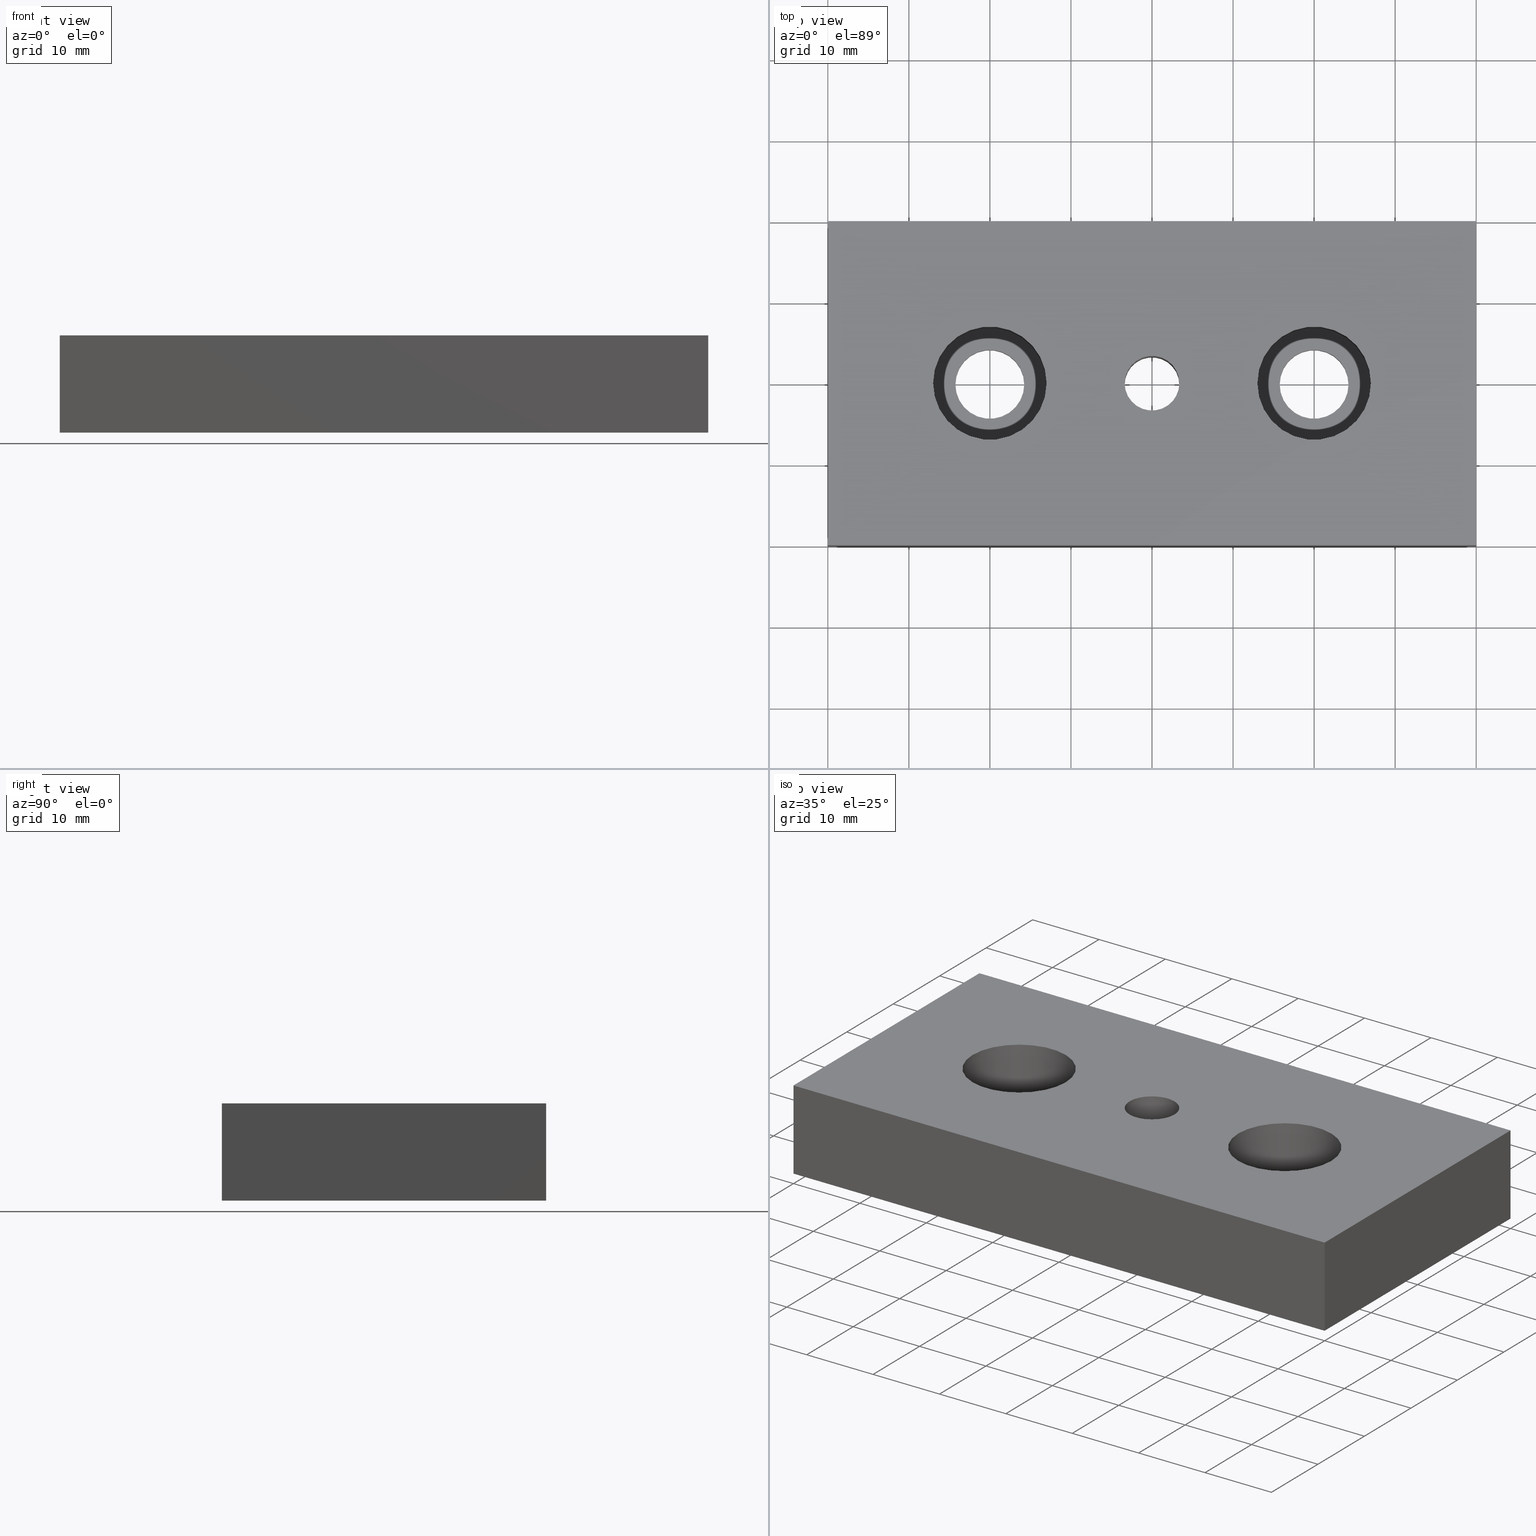
[diagram: canonical four-view strip — front | top / right | iso, engineering-drawing reading convention]
A machine part, canonical four-view strip (front | top / right | iso — engineering-drawing reading convention). The complete STEP part file that produces these views, byte-faithful:
ISO-10303-21;
HEADER;
/****************************************************************
 * Generated by software with PDE/Lib inside                    *
 * PDElib Version v4.4, created Mon 02/23/2004                  *
 * International Technegroup Inc. (www.iti-oh.com)              *
 ****************************************************************/
FILE_DESCRIPTION(('STEP AP203'),'2;1');
FILE_NAME('31.001.00.stp','2011-03-21T16:24:08',(''),(''),'2009.3.110','THINKDESIGN','');
FILE_SCHEMA(('CONFIG_CONTROL_DESIGN'));
ENDSEC;
DATA;
#2=CARTESIAN_POINT('',(39.999991119999947,20.000000000000114,12.0));
#3=DIRECTION('',(0.0,-1.0,0.0));
#4=DIRECTION('',(-1.0,0.0,0.0));
#5=AXIS2_PLACEMENT_3D('',#2,#3,#4);
#6=PLANE('',#5);
#7=CARTESIAN_POINT('',(39.999991119999947,20.000000000000114,12.0));
#8=VERTEX_POINT('',#7);
#9=CARTESIAN_POINT('',(39.999991119999947,20.000000000000114,0.0));
#10=VERTEX_POINT('',#9);
#11=CARTESIAN_POINT('',(39.999991119999947,20.000000000000114,12.0));
#12=DIRECTION('',(0.0,0.0,-1.0));
#13=VECTOR('',#12,12.0);
#14=LINE('',#11,#13);
#15=EDGE_CURVE('',#8,#10,#14,.T.);
#16=ORIENTED_EDGE('',*,*,#15,.T.);
#17=CARTESIAN_POINT('',(-39.999991120000061,20.000000000000114,0.0));
#18=VERTEX_POINT('',#17);
#19=CARTESIAN_POINT('',(39.999991119999947,20.000000000000114,0.0));
#20=DIRECTION('',(-1.0,0.0,0.0));
#21=VECTOR('',#20,79.999982240000008);
#22=LINE('',#19,#21);
#23=EDGE_CURVE('',#10,#18,#22,.T.);
#24=ORIENTED_EDGE('',*,*,#23,.T.);
#25=CARTESIAN_POINT('',(-39.999991120000061,20.000000000000114,12.0));
#26=VERTEX_POINT('',#25);
#27=CARTESIAN_POINT('',(-39.999991120000061,20.000000000000114,12.0));
#28=DIRECTION('',(0.0,0.0,-1.0));
#29=VECTOR('',#28,12.0);
#30=LINE('',#27,#29);
#31=EDGE_CURVE('',#26,#18,#30,.T.);
#32=ORIENTED_EDGE('',*,*,#31,.F.);
#33=CARTESIAN_POINT('',(39.999991119999947,20.000000000000114,12.0));
#34=DIRECTION('',(-1.0,0.0,0.0));
#35=VECTOR('',#34,79.999982240000008);
#36=LINE('',#33,#35);
#37=EDGE_CURVE('',#8,#26,#36,.T.);
#38=ORIENTED_EDGE('',*,*,#37,.F.);
#39=EDGE_LOOP('',(#16,#24,#32,#38));
#40=FACE_OUTER_BOUND('',#39,.T.);
#41=ADVANCED_FACE('',(#40),#6,.F.);
#42=CARTESIAN_POINT('',(-39.999991120000061,20.000000000000114,12.0));
#43=DIRECTION('',(1.0,0.0,0.0));
#44=DIRECTION('',(0.0,-1.0,0.0));
#45=AXIS2_PLACEMENT_3D('',#42,#43,#44);
#46=PLANE('',#45);
#47=ORIENTED_EDGE('',*,*,#31,.T.);
#48=CARTESIAN_POINT('',(-39.999991120000061,-19.999991120000004,0.0));
#49=VERTEX_POINT('',#48);
#50=CARTESIAN_POINT('',(-39.999991120000061,20.000000000000114,0.0));
#51=DIRECTION('',(0.0,-1.0,0.0));
#52=VECTOR('',#51,39.999991120000118);
#53=LINE('',#50,#52);
#54=EDGE_CURVE('',#18,#49,#53,.T.);
#55=ORIENTED_EDGE('',*,*,#54,.T.);
#56=CARTESIAN_POINT('',(-39.999991120000061,-19.999991120000004,12.0));
#57=VERTEX_POINT('',#56);
#58=CARTESIAN_POINT('',(-39.999991120000061,-19.999991120000004,12.0));
#59=DIRECTION('',(0.0,0.0,-1.0));
#60=VECTOR('',#59,12.0);
#61=LINE('',#58,#60);
#62=EDGE_CURVE('',#57,#49,#61,.T.);
#63=ORIENTED_EDGE('',*,*,#62,.F.);
#64=CARTESIAN_POINT('',(-39.999991120000061,20.000000000000114,12.0));
#65=DIRECTION('',(0.0,-1.0,0.0));
#66=VECTOR('',#65,39.999991120000118);
#67=LINE('',#64,#66);
#68=EDGE_CURVE('',#26,#57,#67,.T.);
#69=ORIENTED_EDGE('',*,*,#68,.F.);
#70=EDGE_LOOP('',(#47,#55,#63,#69));
#71=FACE_OUTER_BOUND('',#70,.T.);
#72=ADVANCED_FACE('',(#71),#46,.F.);
#73=CARTESIAN_POINT('',(-39.999991120000061,-19.999991120000004,12.0));
#74=DIRECTION('',(0.0,1.0,0.0));
#75=DIRECTION('',(1.0,0.0,0.0));
#76=AXIS2_PLACEMENT_3D('',#73,#74,#75);
#77=PLANE('',#76);
#78=ORIENTED_EDGE('',*,*,#62,.T.);
#79=CARTESIAN_POINT('',(39.999991119999947,-19.999991120000004,0.0));
#80=VERTEX_POINT('',#79);
#81=CARTESIAN_POINT('',(-39.999991120000061,-19.999991120000004,0.0));
#82=DIRECTION('',(1.0,0.0,0.0));
#83=VECTOR('',#82,79.999982240000008);
#84=LINE('',#81,#83);
#85=EDGE_CURVE('',#49,#80,#84,.T.);
#86=ORIENTED_EDGE('',*,*,#85,.T.);
#87=CARTESIAN_POINT('',(39.999991119999947,-19.999991120000004,12.0));
#88=VERTEX_POINT('',#87);
#89=CARTESIAN_POINT('',(39.999991119999947,-19.999991120000004,12.0));
#90=DIRECTION('',(0.0,0.0,-1.0));
#91=VECTOR('',#90,12.0);
#92=LINE('',#89,#91);
#93=EDGE_CURVE('',#88,#80,#92,.T.);
#94=ORIENTED_EDGE('',*,*,#93,.F.);
#95=CARTESIAN_POINT('',(-39.999991120000061,-19.999991120000004,12.0));
#96=DIRECTION('',(1.0,0.0,0.0));
#97=VECTOR('',#96,79.999982240000008);
#98=LINE('',#95,#97);
#99=EDGE_CURVE('',#57,#88,#98,.T.);
#100=ORIENTED_EDGE('',*,*,#99,.F.);
#101=EDGE_LOOP('',(#78,#86,#94,#100));
#102=FACE_OUTER_BOUND('',#101,.T.);
#103=ADVANCED_FACE('',(#102),#77,.F.);
#104=CARTESIAN_POINT('',(39.999991119999947,-19.999991120000004,12.0));
#105=DIRECTION('',(-1.0,0.0,0.0));
#106=DIRECTION('',(0.0,1.0,0.0));
#107=AXIS2_PLACEMENT_3D('',#104,#105,#106);
#108=PLANE('',#107);
#109=ORIENTED_EDGE('',*,*,#93,.T.);
#110=CARTESIAN_POINT('',(39.999991119999947,-19.999991120000004,0.0));
#111=DIRECTION('',(0.0,1.0,0.0));
#112=VECTOR('',#111,39.999991120000118);
#113=LINE('',#110,#112);
#114=EDGE_CURVE('',#80,#10,#113,.T.);
#115=ORIENTED_EDGE('',*,*,#114,.T.);
#116=ORIENTED_EDGE('',*,*,#15,.F.);
#117=CARTESIAN_POINT('',(39.999991119999947,-19.999991120000004,12.0));
#118=DIRECTION('',(0.0,1.0,0.0));
#119=VECTOR('',#118,39.999991120000118);
#120=LINE('',#117,#119);
#121=EDGE_CURVE('',#88,#8,#120,.T.);
#122=ORIENTED_EDGE('',*,*,#121,.F.);
#123=EDGE_LOOP('',(#109,#115,#116,#122));
#124=FACE_OUTER_BOUND('',#123,.T.);
#125=ADVANCED_FACE('',(#124),#108,.F.);
#126=CARTESIAN_POINT('',(-48.000109346378082,-24.000110234280328,12.0));
#127=DIRECTION('',(0.0,0.0,1.0));
#128=DIRECTION('',(1.0,0.0,0.0));
#129=AXIS2_PLACEMENT_3D('',#126,#127,#128);
#130=PLANE('',#129);
#131=ORIENTED_EDGE('',*,*,#37,.T.);
#132=ORIENTED_EDGE('',*,*,#68,.T.);
#133=ORIENTED_EDGE('',*,*,#99,.T.);
#134=ORIENTED_EDGE('',*,*,#121,.T.);
#135=EDGE_LOOP('',(#131,#132,#133,#134));
#136=FACE_OUTER_BOUND('',#135,.T.);
#137=CARTESIAN_POINT('',(-27.009994006000085,0.000004439999998,12.0));
#138=VERTEX_POINT('',#137);
#139=CARTESIAN_POINT('',(-13.009997114000072,0.000004439999998,11.999999999999998));
#140=VERTEX_POINT('',#139);
#141=CARTESIAN_POINT('',(-20.009995560000078,0.000004439999998,12.0));
#142=DIRECTION('',(0.0,6.123234E-017,1.0));
#143=DIRECTION('',(1.0,0.0,0.0));
#144=AXIS2_PLACEMENT_3D('',#141,#142,#143);
#145=CIRCLE('',#144,6.999998446000006);
#146=EDGE_CURVE('',#138,#140,#145,.T.);
#147=ORIENTED_EDGE('',*,*,#146,.F.);
#148=CARTESIAN_POINT('',(-20.009995560000078,0.000004439999998,12.0));
#149=DIRECTION('',(0.0,6.123234E-017,1.0));
#150=DIRECTION('',(1.0,0.0,0.0));
#151=AXIS2_PLACEMENT_3D('',#148,#149,#150);
#152=CIRCLE('',#151,6.999998446000006);
#153=EDGE_CURVE('',#140,#138,#152,.T.);
#154=ORIENTED_EDGE('',*,*,#153,.F.);
#155=EDGE_LOOP('',(#147,#154));
#156=FACE_BOUND('',#155,.T.);
#157=CARTESIAN_POINT('',(12.999997113999939,0.000004439999998,12.0));
#158=VERTEX_POINT('',#157);
#159=CARTESIAN_POINT('',(26.999994005999952,0.000004439999998,11.999999999999998));
#160=VERTEX_POINT('',#159);
#161=CARTESIAN_POINT('',(19.999995559999945,0.000004439999998,12.0));
#162=DIRECTION('',(0.0,6.123234E-017,1.0));
#163=DIRECTION('',(1.0,0.0,0.0));
#164=AXIS2_PLACEMENT_3D('',#161,#162,#163);
#165=CIRCLE('',#164,6.999998446000006);
#166=EDGE_CURVE('',#158,#160,#165,.T.);
#167=ORIENTED_EDGE('',*,*,#166,.F.);
#168=CARTESIAN_POINT('',(19.999995559999945,0.000004439999998,12.0));
#169=DIRECTION('',(0.0,6.123234E-017,1.0));
#170=DIRECTION('',(1.0,0.0,0.0));
#171=AXIS2_PLACEMENT_3D('',#168,#169,#170);
#172=CIRCLE('',#171,6.999998446000006);
#173=EDGE_CURVE('',#160,#158,#172,.T.);
#174=ORIENTED_EDGE('',*,*,#173,.F.);
#175=EDGE_LOOP('',(#167,#174));
#176=FACE_BOUND('',#175,.T.);
#177=CARTESIAN_POINT('',(-3.375000000000000,0.0,12.0));
#178=VERTEX_POINT('',#177);
#179=CARTESIAN_POINT('',(3.375000000000000,0.0,12.0));
#180=VERTEX_POINT('',#179);
#181=CARTESIAN_POINT('',(0.0,0.0,12.0));
#182=DIRECTION('',(0.0,0.0,1.0));
#183=DIRECTION('',(1.0,0.0,0.0));
#184=AXIS2_PLACEMENT_3D('',#181,#182,#183);
#185=CIRCLE('',#184,3.375000000000000);
#186=EDGE_CURVE('',#178,#180,#185,.T.);
#187=ORIENTED_EDGE('',*,*,#186,.F.);
#188=CARTESIAN_POINT('',(0.0,0.0,12.0));
#189=DIRECTION('',(0.0,0.0,1.0));
#190=DIRECTION('',(1.0,0.0,0.0));
#191=AXIS2_PLACEMENT_3D('',#188,#189,#190);
#192=CIRCLE('',#191,3.375000000000000);
#193=EDGE_CURVE('',#180,#178,#192,.T.);
#194=ORIENTED_EDGE('',*,*,#193,.F.);
#195=EDGE_LOOP('',(#187,#194));
#196=FACE_BOUND('',#195,.T.);
#197=ADVANCED_FACE('',(#136,#156,#176,#196),#130,.T.);
#198=CARTESIAN_POINT('',(-48.000109346378082,-24.000110234280328,0.0));
#199=DIRECTION('',(0.0,0.0,1.0));
#200=DIRECTION('',(1.0,0.0,0.0));
#201=AXIS2_PLACEMENT_3D('',#198,#199,#200);
#202=PLANE('',#201);
#203=ORIENTED_EDGE('',*,*,#114,.F.);
#204=ORIENTED_EDGE('',*,*,#85,.F.);
#205=ORIENTED_EDGE('',*,*,#54,.F.);
#206=ORIENTED_EDGE('',*,*,#23,.F.);
#207=EDGE_LOOP('',(#203,#204,#205,#206));
#208=FACE_OUTER_BOUND('',#207,.T.);
#209=CARTESIAN_POINT('',(-15.759995560000078,0.000004439999998,0.0));
#210=VERTEX_POINT('',#209);
#211=CARTESIAN_POINT('',(-24.259995560000078,0.000004439999998,0.0));
#212=VERTEX_POINT('',#211);
#213=CARTESIAN_POINT('',(-20.009995560000078,0.000004439999998,0.0));
#214=DIRECTION('',(0.0,6.123234E-017,1.0));
#215=DIRECTION('',(1.0,0.0,0.0));
#216=AXIS2_PLACEMENT_3D('',#213,#214,#215);
#217=CIRCLE('',#216,4.250000000000000);
#218=EDGE_CURVE('',#210,#212,#217,.T.);
#219=ORIENTED_EDGE('',*,*,#218,.T.);
#220=CARTESIAN_POINT('',(-20.009995560000078,0.000004439999998,0.0));
#221=DIRECTION('',(0.0,6.123234E-017,1.0));
#222=DIRECTION('',(1.0,0.0,0.0));
#223=AXIS2_PLACEMENT_3D('',#220,#221,#222);
#224=CIRCLE('',#223,4.250000000000000);
#225=EDGE_CURVE('',#212,#210,#224,.T.);
#226=ORIENTED_EDGE('',*,*,#225,.T.);
#227=EDGE_LOOP('',(#219,#226));
#228=FACE_BOUND('',#227,.T.);
#229=CARTESIAN_POINT('',(24.249995559999945,0.000004439999998,0.0));
#230=VERTEX_POINT('',#229);
#231=CARTESIAN_POINT('',(15.749995559999945,0.000004439999998,0.0));
#232=VERTEX_POINT('',#231);
#233=CARTESIAN_POINT('',(19.999995559999945,0.000004439999998,0.0));
#234=DIRECTION('',(0.0,6.123234E-017,1.0));
#235=DIRECTION('',(1.0,0.0,0.0));
#236=AXIS2_PLACEMENT_3D('',#233,#234,#235);
#237=CIRCLE('',#236,4.250000000000000);
#238=EDGE_CURVE('',#230,#232,#237,.T.);
#239=ORIENTED_EDGE('',*,*,#238,.T.);
#240=CARTESIAN_POINT('',(19.999995559999945,0.000004439999998,0.0));
#241=DIRECTION('',(0.0,6.123234E-017,1.0));
#242=DIRECTION('',(1.0,0.0,0.0));
#243=AXIS2_PLACEMENT_3D('',#240,#241,#242);
#244=CIRCLE('',#243,4.250000000000000);
#245=EDGE_CURVE('',#232,#230,#244,.T.);
#246=ORIENTED_EDGE('',*,*,#245,.T.);
#247=EDGE_LOOP('',(#239,#246));
#248=FACE_BOUND('',#247,.T.);
#249=CARTESIAN_POINT('',(-3.375000000000000,0.0,0.0));
#250=VERTEX_POINT('',#249);
#251=CARTESIAN_POINT('',(3.375000000000000,0.0,0.0));
#252=VERTEX_POINT('',#251);
#253=CARTESIAN_POINT('',(0.0,0.0,0.0));
#254=DIRECTION('',(0.0,0.0,-1.0));
#255=DIRECTION('',(1.0,0.0,0.0));
#256=AXIS2_PLACEMENT_3D('',#253,#254,#255);
#257=CIRCLE('',#256,3.375000000000000);
#258=EDGE_CURVE('',#250,#252,#257,.T.);
#259=ORIENTED_EDGE('',*,*,#258,.F.);
#260=CARTESIAN_POINT('',(0.0,0.0,0.0));
#261=DIRECTION('',(0.0,0.0,-1.0));
#262=DIRECTION('',(1.0,0.0,0.0));
#263=AXIS2_PLACEMENT_3D('',#260,#261,#262);
#264=CIRCLE('',#263,3.375000000000000);
#265=EDGE_CURVE('',#252,#250,#264,.T.);
#266=ORIENTED_EDGE('',*,*,#265,.F.);
#267=EDGE_LOOP('',(#259,#266));
#268=FACE_BOUND('',#267,.T.);
#269=ADVANCED_FACE('',(#208,#228,#248,#268),#202,.F.);
#270=CARTESIAN_POINT('',(-20.009995560000078,0.000004439999998,-1.200440597534186));
#271=DIRECTION('',(0.0,6.123234E-017,1.0));
#272=DIRECTION('',(1.0,0.0,0.0));
#273=AXIS2_PLACEMENT_3D('',#270,#271,#272);
#274=CYLINDRICAL_SURFACE('',#273,4.250000000000000);
#275=CARTESIAN_POINT('',(-15.759995560000078,0.000004439999998,3.999999999999998));
#276=VERTEX_POINT('',#275);
#277=CARTESIAN_POINT('',(-15.759995560000078,0.000004439999998,0.0));
#278=DIRECTION('',(0.0,0.0,1.0));
#279=VECTOR('',#278,3.999999999999998);
#280=LINE('',#277,#279);
#281=EDGE_CURVE('',#210,#276,#280,.T.);
#282=ORIENTED_EDGE('',*,*,#281,.F.);
#283=ORIENTED_EDGE('',*,*,#225,.F.);
#284=ORIENTED_EDGE('',*,*,#218,.F.);
#285=ORIENTED_EDGE('',*,*,#281,.T.);
#286=CARTESIAN_POINT('',(-24.259995560000078,0.000004439999998,4.0));
#287=VERTEX_POINT('',#286);
#288=CARTESIAN_POINT('',(-20.009995560000078,0.000004439999998,4.0));
#289=DIRECTION('',(0.0,6.123234E-017,1.0));
#290=DIRECTION('',(1.0,0.0,0.0));
#291=AXIS2_PLACEMENT_3D('',#288,#289,#290);
#292=CIRCLE('',#291,4.250000000000000);
#293=EDGE_CURVE('',#276,#287,#292,.T.);
#294=ORIENTED_EDGE('',*,*,#293,.T.);
#295=CARTESIAN_POINT('',(-20.009995560000078,0.000004439999998,4.0));
#296=DIRECTION('',(0.0,6.123234E-017,1.0));
#297=DIRECTION('',(1.0,0.0,0.0));
#298=AXIS2_PLACEMENT_3D('',#295,#296,#297);
#299=CIRCLE('',#298,4.250000000000000);
#300=EDGE_CURVE('',#287,#276,#299,.T.);
#301=ORIENTED_EDGE('',*,*,#300,.T.);
#302=EDGE_LOOP('',(#282,#283,#284,#285,#294,#301));
#303=FACE_OUTER_BOUND('',#302,.T.);
#304=ADVANCED_FACE('',(#303),#274,.F.);
#305=CARTESIAN_POINT('',(-34.009992452000091,-13.999992452000015,4.000000000000001));
#306=DIRECTION('',(0.0,0.0,-1.0));
#307=DIRECTION('',(0.0,1.0,0.0));
#308=AXIS2_PLACEMENT_3D('',#305,#306,#307);
#309=PLANE('',#308);
#310=CARTESIAN_POINT('',(-13.009997114000072,0.000004439999998,4.0));
#311=VERTEX_POINT('',#310);
#312=CARTESIAN_POINT('',(-27.009994006000085,0.000004439999998,4.0));
#313=VERTEX_POINT('',#312);
#314=CARTESIAN_POINT('',(-20.009995560000078,0.000004439999998,4.0));
#315=DIRECTION('',(0.0,6.123234E-017,1.0));
#316=DIRECTION('',(1.0,0.0,0.0));
#317=AXIS2_PLACEMENT_3D('',#314,#315,#316);
#318=CIRCLE('',#317,6.999998446000006);
#319=EDGE_CURVE('',#311,#313,#318,.T.);
#320=ORIENTED_EDGE('',*,*,#319,.T.);
#321=CARTESIAN_POINT('',(-20.009995560000078,0.000004439999998,4.0));
#322=DIRECTION('',(0.0,6.123234E-017,1.0));
#323=DIRECTION('',(1.0,0.0,0.0));
#324=AXIS2_PLACEMENT_3D('',#321,#322,#323);
#325=CIRCLE('',#324,6.999998446000006);
#326=EDGE_CURVE('',#313,#311,#325,.T.);
#327=ORIENTED_EDGE('',*,*,#326,.T.);
#328=EDGE_LOOP('',(#320,#327));
#329=FACE_OUTER_BOUND('',#328,.T.);
#330=ORIENTED_EDGE('',*,*,#300,.F.);
#331=ORIENTED_EDGE('',*,*,#293,.F.);
#332=EDGE_LOOP('',(#330,#331));
#333=FACE_BOUND('',#332,.T.);
#334=ADVANCED_FACE('',(#329,#333),#309,.F.);
#335=CARTESIAN_POINT('',(-20.009995560000078,0.000004439999998,4.0));
#336=DIRECTION('',(0.0,6.123234E-017,1.0));
#337=DIRECTION('',(1.0,0.0,0.0));
#338=AXIS2_PLACEMENT_3D('',#335,#336,#337);
#339=CYLINDRICAL_SURFACE('',#338,6.999998446000006);
#340=CARTESIAN_POINT('',(-13.009997114000072,0.000004439999998,4.0));
#341=DIRECTION('',(0.0,0.0,1.0));
#342=VECTOR('',#341,7.999999999999998);
#343=LINE('',#340,#342);
#344=EDGE_CURVE('',#311,#140,#343,.T.);
#345=ORIENTED_EDGE('',*,*,#344,.T.);
#346=ORIENTED_EDGE('',*,*,#153,.T.);
#347=ORIENTED_EDGE('',*,*,#146,.T.);
#348=ORIENTED_EDGE('',*,*,#344,.F.);
#349=ORIENTED_EDGE('',*,*,#326,.F.);
#350=ORIENTED_EDGE('',*,*,#319,.F.);
#351=EDGE_LOOP('',(#345,#346,#347,#348,#349,#350));
#352=FACE_OUTER_BOUND('',#351,.T.);
#353=ADVANCED_FACE('',(#352),#339,.F.);
#354=CARTESIAN_POINT('',(19.999995559999945,0.000004439999998,-1.200440597534186));
#355=DIRECTION('',(0.0,6.123234E-017,1.0));
#356=DIRECTION('',(1.0,0.0,0.0));
#357=AXIS2_PLACEMENT_3D('',#354,#355,#356);
#358=CYLINDRICAL_SURFACE('',#357,4.250000000000000);
#359=CARTESIAN_POINT('',(24.249995559999945,0.000004439999998,3.999999999999998));
#360=VERTEX_POINT('',#359);
#361=CARTESIAN_POINT('',(24.249995559999945,0.000004439999998,0.0));
#362=DIRECTION('',(0.0,0.0,1.0));
#363=VECTOR('',#362,3.999999999999998);
#364=LINE('',#361,#363);
#365=EDGE_CURVE('',#230,#360,#364,.T.);
#366=ORIENTED_EDGE('',*,*,#365,.F.);
#367=ORIENTED_EDGE('',*,*,#245,.F.);
#368=ORIENTED_EDGE('',*,*,#238,.F.);
#369=ORIENTED_EDGE('',*,*,#365,.T.);
#370=CARTESIAN_POINT('',(15.749995559999945,0.000004439999998,4.0));
#371=VERTEX_POINT('',#370);
#372=CARTESIAN_POINT('',(19.999995559999945,0.000004439999998,4.0));
#373=DIRECTION('',(0.0,6.123234E-017,1.0));
#374=DIRECTION('',(1.0,0.0,0.0));
#375=AXIS2_PLACEMENT_3D('',#372,#373,#374);
#376=CIRCLE('',#375,4.250000000000000);
#377=EDGE_CURVE('',#360,#371,#376,.T.);
#378=ORIENTED_EDGE('',*,*,#377,.T.);
#379=CARTESIAN_POINT('',(19.999995559999945,0.000004439999998,4.0));
#380=DIRECTION('',(0.0,6.123234E-017,1.0));
#381=DIRECTION('',(1.0,0.0,0.0));
#382=AXIS2_PLACEMENT_3D('',#379,#380,#381);
#383=CIRCLE('',#382,4.250000000000000);
#384=EDGE_CURVE('',#371,#360,#383,.T.);
#385=ORIENTED_EDGE('',*,*,#384,.T.);
#386=EDGE_LOOP('',(#366,#367,#368,#369,#378,#385));
#387=FACE_OUTER_BOUND('',#386,.T.);
#388=ADVANCED_FACE('',(#387),#358,.F.);
#389=CARTESIAN_POINT('',(5.999998667999932,-13.999992452000015,4.000000000000001));
#390=DIRECTION('',(0.0,0.0,-1.0));
#391=DIRECTION('',(0.0,1.0,0.0));
#392=AXIS2_PLACEMENT_3D('',#389,#390,#391);
#393=PLANE('',#392);
#394=CARTESIAN_POINT('',(26.999994005999952,0.000004439999998,4.0));
#395=VERTEX_POINT('',#394);
#396=CARTESIAN_POINT('',(12.999997113999939,0.000004439999998,4.0));
#397=VERTEX_POINT('',#396);
#398=CARTESIAN_POINT('',(19.999995559999945,0.000004439999998,4.0));
#399=DIRECTION('',(0.0,6.123234E-017,1.0));
#400=DIRECTION('',(1.0,0.0,0.0));
#401=AXIS2_PLACEMENT_3D('',#398,#399,#400);
#402=CIRCLE('',#401,6.999998446000006);
#403=EDGE_CURVE('',#395,#397,#402,.T.);
#404=ORIENTED_EDGE('',*,*,#403,.T.);
#405=CARTESIAN_POINT('',(19.999995559999945,0.000004439999998,4.0));
#406=DIRECTION('',(0.0,6.123234E-017,1.0));
#407=DIRECTION('',(1.0,0.0,0.0));
#408=AXIS2_PLACEMENT_3D('',#405,#406,#407);
#409=CIRCLE('',#408,6.999998446000006);
#410=EDGE_CURVE('',#397,#395,#409,.T.);
#411=ORIENTED_EDGE('',*,*,#410,.T.);
#412=EDGE_LOOP('',(#404,#411));
#413=FACE_OUTER_BOUND('',#412,.T.);
#414=ORIENTED_EDGE('',*,*,#384,.F.);
#415=ORIENTED_EDGE('',*,*,#377,.F.);
#416=EDGE_LOOP('',(#414,#415));
#417=FACE_BOUND('',#416,.T.);
#418=ADVANCED_FACE('',(#413,#417),#393,.F.);
#419=CARTESIAN_POINT('',(19.999995559999945,0.000004439999998,4.0));
#420=DIRECTION('',(0.0,6.123234E-017,1.0));
#421=DIRECTION('',(1.0,0.0,0.0));
#422=AXIS2_PLACEMENT_3D('',#419,#420,#421);
#423=CYLINDRICAL_SURFACE('',#422,6.999998446000006);
#424=CARTESIAN_POINT('',(26.999994005999952,0.000004439999998,4.0));
#425=DIRECTION('',(0.0,0.0,1.0));
#426=VECTOR('',#425,7.999999999999998);
#427=LINE('',#424,#426);
#428=EDGE_CURVE('',#395,#160,#427,.T.);
#429=ORIENTED_EDGE('',*,*,#428,.T.);
#430=ORIENTED_EDGE('',*,*,#173,.T.);
#431=ORIENTED_EDGE('',*,*,#166,.T.);
#432=ORIENTED_EDGE('',*,*,#428,.F.);
#433=ORIENTED_EDGE('',*,*,#410,.F.);
#434=ORIENTED_EDGE('',*,*,#403,.F.);
#435=EDGE_LOOP('',(#429,#430,#431,#432,#433,#434));
#436=FACE_OUTER_BOUND('',#435,.T.);
#437=ADVANCED_FACE('',(#436),#423,.F.);
#438=CARTESIAN_POINT('',(0.0,0.0,12.0));
#439=DIRECTION('',(0.0,0.0,1.0));
#440=DIRECTION('',(1.0,0.0,0.0));
#441=AXIS2_PLACEMENT_3D('',#438,#439,#440);
#442=CYLINDRICAL_SURFACE('',#441,3.375000000000000);
#443=CARTESIAN_POINT('',(3.375000000000000,0.0,12.0));
#444=DIRECTION('',(0.0,0.0,-1.0));
#445=VECTOR('',#444,12.0);
#446=LINE('',#443,#445);
#447=EDGE_CURVE('',#180,#252,#446,.T.);
#448=ORIENTED_EDGE('',*,*,#447,.T.);
#449=ORIENTED_EDGE('',*,*,#265,.T.);
#450=ORIENTED_EDGE('',*,*,#258,.T.);
#451=ORIENTED_EDGE('',*,*,#447,.F.);
#452=ORIENTED_EDGE('',*,*,#193,.T.);
#453=ORIENTED_EDGE('',*,*,#186,.T.);
#454=EDGE_LOOP('',(#448,#449,#450,#451,#452,#453));
#455=FACE_OUTER_BOUND('',#454,.T.);
#456=ADVANCED_FACE('',(#455),#442,.F.);
#457=CLOSED_SHELL('',(#41,#72,#103,#125,#197,#269,#304,#334,#353,#388,#418,#437,#456));
#458=MANIFOLD_SOLID_BREP('',#457);
#464=(NAMED_UNIT(*)PLANE_ANGLE_UNIT()SI_UNIT($,.RADIAN.));
#465=DIMENSIONAL_EXPONENTS(0.0,0.0,0.0,0.0,0.0,0.0,0.0);
#466=PLANE_ANGLE_MEASURE_WITH_UNIT(PLANE_ANGLE_MEASURE(0.017453292500000),#464);
#470=(CONVERSION_BASED_UNIT('DEGREE',#466)NAMED_UNIT(#465)PLANE_ANGLE_UNIT());
#474=(NAMED_UNIT(*)SI_UNIT($,.STERADIAN.)SOLID_ANGLE_UNIT());
#478=(LENGTH_UNIT()NAMED_UNIT(*)SI_UNIT(.MILLI.,.METRE.));
#480=UNCERTAINTY_MEASURE_WITH_UNIT(LENGTH_MEASURE(0.001000000000000),#478,'DISTANCE_ACCURACY_VALUE','');
#482=(GEOMETRIC_REPRESENTATION_CONTEXT(3)GLOBAL_UNCERTAINTY_ASSIGNED_CONTEXT((#480))GLOBAL_UNIT_ASSIGNED_CONTEXT((#470,#474,#478))REPRESENTATION_CONTEXT('thinkdesign','2009.3.110'));
#483=ADVANCED_BREP_SHAPE_REPRESENTATION('',(#458),#482);
#484=APPLICATION_CONTEXT('configuration controlled 3D designs of mechanical parts and assemblies');
#485=APPLICATION_PROTOCOL_DEFINITION('International Standard','config_control_design',1995,#484);
#486=MECHANICAL_CONTEXT('None',#484,'mechanical');
#487=PRODUCT('None','None','None',(#486));
#488=PRODUCT_RELATED_PRODUCT_CATEGORY('detail',$,(#487));
#489=PRODUCT_CATEGORY('part',$);
#490=PRODUCT_CATEGORY_RELATIONSHIP('None','None',#489,#488);
#491=PERSON('PERSON1','None','None',$,$,$);
#492=ORGANIZATION('','None','None');
#493=PERSON_AND_ORGANIZATION(#491,#492);
#494=PERSON_AND_ORGANIZATION_ROLE('design_owner');
#495=CC_DESIGN_PERSON_AND_ORGANIZATION_ASSIGNMENT(#493,#494,(#487));
#496=PRODUCT_DEFINITION_FORMATION_WITH_SPECIFIED_SOURCE('None','None',#487,.NOT_KNOWN.);
#497=PERSON('PERSON2','None','None',$,$,$);
#498=ORGANIZATION('','None','None');
#499=PERSON_AND_ORGANIZATION(#497,#498);
#500=PERSON_AND_ORGANIZATION_ROLE('creator');
#501=CC_DESIGN_PERSON_AND_ORGANIZATION_ASSIGNMENT(#499,#500,(#496));
#502=PERSON('PERSON3','None','None',$,$,$);
#503=ORGANIZATION('','None','None');
#504=PERSON_AND_ORGANIZATION(#502,#503);
#505=PERSON_AND_ORGANIZATION_ROLE('part_supplier');
#506=CC_DESIGN_PERSON_AND_ORGANIZATION_ASSIGNMENT(#504,#505,(#496));
#507=APPROVAL_STATUS('approved');
#508=APPROVAL(#507,'None');
#509=PERSON('PERSON4','None','None',$,$,$);
#510=ORGANIZATION('','None','None');
#511=PERSON_AND_ORGANIZATION(#509,#510);
#512=APPROVAL_ROLE('None');
#513=APPROVAL_PERSON_ORGANIZATION(#511,#508,#512);
#514=CALENDAR_DATE(2011,21,3);
#515=COORDINATED_UNIVERSAL_TIME_OFFSET(0,0,.AHEAD.);
#516=LOCAL_TIME(16,24,8.0,#515);
#517=DATE_AND_TIME(#514,#516);
#518=APPROVAL_DATE_TIME(#517,#508);
#519=CC_DESIGN_APPROVAL(#508,(#496));
#520=SECURITY_CLASSIFICATION_LEVEL('unclassified');
#521=SECURITY_CLASSIFICATION('None','None',#520);
#522=CC_DESIGN_SECURITY_CLASSIFICATION(#521,(#496));
#523=APPROVAL_STATUS('approved');
#524=APPROVAL(#523,'None');
#525=PERSON('PERSON5','None','None',$,$,$);
#526=ORGANIZATION('','None','None');
#527=PERSON_AND_ORGANIZATION(#525,#526);
#528=APPROVAL_ROLE('None');
#529=APPROVAL_PERSON_ORGANIZATION(#527,#524,#528);
#530=CALENDAR_DATE(2011,21,3);
#531=COORDINATED_UNIVERSAL_TIME_OFFSET(0,0,.AHEAD.);
#532=LOCAL_TIME(16,24,8.0,#531);
#533=DATE_AND_TIME(#530,#532);
#534=APPROVAL_DATE_TIME(#533,#524);
#535=CC_DESIGN_APPROVAL(#524,(#521));
#536=PERSON('PERSON6','None','None',$,$,$);
#537=ORGANIZATION('','None','None');
#538=PERSON_AND_ORGANIZATION(#536,#537);
#539=PERSON_AND_ORGANIZATION_ROLE('classification_officer');
#540=CC_DESIGN_PERSON_AND_ORGANIZATION_ASSIGNMENT(#538,#539,(#521));
#541=DATE_TIME_ROLE('classification_date');
#542=CALENDAR_DATE(2011,21,3);
#543=COORDINATED_UNIVERSAL_TIME_OFFSET(0,0,.AHEAD.);
#544=LOCAL_TIME(16,24,8.0,#543);
#545=DATE_AND_TIME(#542,#544);
#546=CC_DESIGN_DATE_AND_TIME_ASSIGNMENT(#545,#541,(#521));
#547=DESIGN_CONTEXT('part definition',#484,'design');
#548=DOCUMENT_TYPE('cad_filename');
#549=DOCUMENT('None','None','None',#548);
#550=PRODUCT_DEFINITION_WITH_ASSOCIATED_DOCUMENTS('None','None',#496,#547,(#549));
#551=PERSON('PERSON7','None','None',$,$,$);
#552=ORGANIZATION('','None','None');
#553=PERSON_AND_ORGANIZATION(#551,#552);
#554=PERSON_AND_ORGANIZATION_ROLE('creator');
#555=CC_DESIGN_PERSON_AND_ORGANIZATION_ASSIGNMENT(#553,#554,(#550));
#556=DATE_TIME_ROLE('creation_date');
#557=CALENDAR_DATE(2011,21,3);
#558=COORDINATED_UNIVERSAL_TIME_OFFSET(0,0,.AHEAD.);
#559=LOCAL_TIME(16,24,8.0,#558);
#560=DATE_AND_TIME(#557,#559);
#561=CC_DESIGN_DATE_AND_TIME_ASSIGNMENT(#560,#556,(#550));
#562=APPROVAL_STATUS('approved');
#563=APPROVAL(#562,'None');
#564=PERSON('PERSON8','None','None',$,$,$);
#565=ORGANIZATION('','None','None');
#566=PERSON_AND_ORGANIZATION(#564,#565);
#567=APPROVAL_ROLE('None');
#568=APPROVAL_PERSON_ORGANIZATION(#566,#563,#567);
#569=CALENDAR_DATE(2011,21,3);
#570=COORDINATED_UNIVERSAL_TIME_OFFSET(0,0,.AHEAD.);
#571=LOCAL_TIME(16,24,8.0,#570);
#572=DATE_AND_TIME(#569,#571);
#573=APPROVAL_DATE_TIME(#572,#563);
#574=CC_DESIGN_APPROVAL(#563,(#550));
#575=PRODUCT_DEFINITION_SHAPE('None','None',#550);
#576=SHAPE_DEFINITION_REPRESENTATION(#575,#483);
#577=DIMENSIONAL_EXPONENTS(0.0,0.0,0.0,0.0,0.0,0.0,0.0);
#578=DIMENSIONAL_EXPONENTS(1.0,0.0,0.0,0.0,0.0,0.0,0.0);
ENDSEC;
END-ISO-10303-21;
